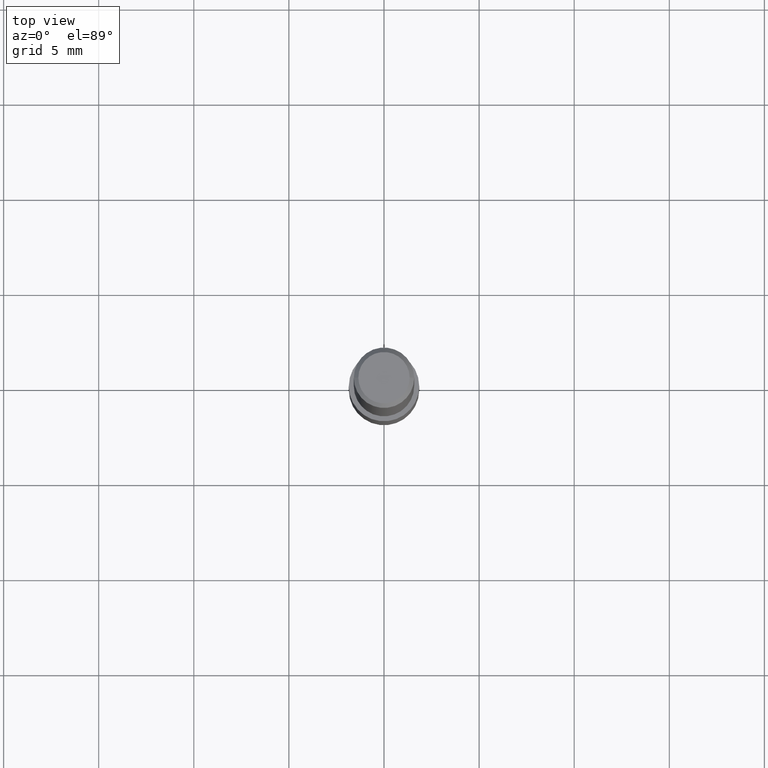
[diagram: clean part render]
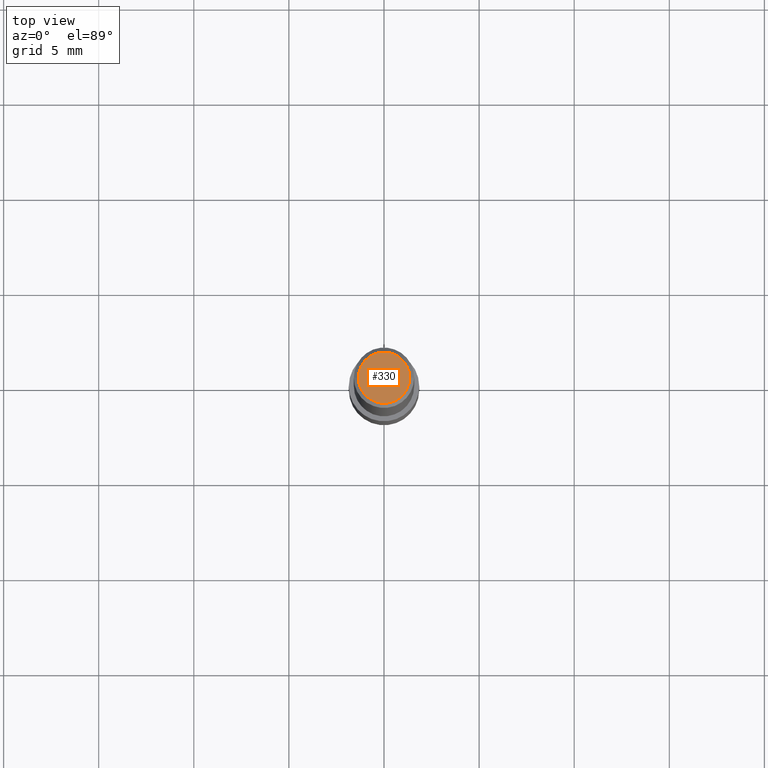
[diagram: same view with one face highlighted and labeled with its STEP entity id]
A machine part, top view. The second image highlights one B-rep face of the part: STEP entity #330.
In plain terms, the highlighted planar face has unit normal (0, -0, -1).
Its self-contained STEP definition (entity closure, byte-faithful):
#4 = DIRECTION ( 'NONE',  ( 1.000000000000000000, -6.982962677686266711E-15, 4.876176628004948512E-29 ) ) ;
#5 = ORIENTED_EDGE ( 'NONE', *, *, #142, .T. ) ;
#19 = FACE_OUTER_BOUND ( 'NONE', #158, .T. ) ;
#20 = CIRCLE ( 'NONE', #213, 0.05312499999999999861 ) ;
#43 = DIRECTION ( 'NONE',  ( -1.000000000000000000, 6.982962677686265922E-15, -4.876176775795935793E-29 ) ) ;
#78 = CARTESIAN_POINT ( 'NONE',  ( -3.743544432386672853E-50, 5.344789307371238476E-36, 1.530808498934197599E-21 ) ) ;
#90 = VERTEX_POINT ( 'NONE', #298 ) ;
#111 = DIRECTION ( 'NONE',  ( 1.000000000000000000, -6.982962677686266711E-15, 4.876176628004948512E-29 ) ) ;
#118 = VERTEX_POINT ( 'NONE', #222 ) ;
#123 = PLANE ( 'NONE',  #239 ) ;
#134 = CARTESIAN_POINT ( 'NONE',  ( -7.487088864773345706E-50, 1.068957861474247695E-35, 3.061616997868395197E-21 ) ) ;
#142 = EDGE_CURVE ( 'NONE', #90, #118, #20, .T. ) ;
#158 = EDGE_LOOP ( 'NONE', ( #296, #5 ) ) ;
#192 = AXIS2_PLACEMENT_3D ( 'NONE', #134, #235, #4 ) ;
#213 = AXIS2_PLACEMENT_3D ( 'NONE', #218, #314, #111 ) ;
#218 = CARTESIAN_POINT ( 'NONE',  ( -7.487088864773345706E-50, 1.068957861474247695E-35, 3.061616997868395197E-21 ) ) ;
#222 = CARTESIAN_POINT ( 'NONE',  ( -0.05312499999999999861, 3.873362110279099094E-16, 3.061616995216862494E-21 ) ) ;
#235 = DIRECTION ( 'NONE',  ( -2.445468806185136597E-29, 3.491481338843145583E-15, 1.000000000000000000 ) ) ;
#239 = AXIS2_PLACEMENT_3D ( 'NONE', #78, #246, #43 ) ;
#246 = DIRECTION ( 'NONE',  ( 2.438088387897960049E-29, -3.491481338843145188E-15, -1.000000000000000000 ) ) ;
#287 = EDGE_CURVE ( 'NONE', #118, #90, #327, .T. ) ;
#296 = ORIENTED_EDGE ( 'NONE', *, *, #287, .T. ) ;
#298 = CARTESIAN_POINT ( 'NONE',  ( 0.05312499999999999861, -4.129888592719939842E-16, 3.061617000609493422E-21 ) ) ;
#314 = DIRECTION ( 'NONE',  ( -2.445468806185136597E-29, 3.491481338843145583E-15, 1.000000000000000000 ) ) ;
#327 = CIRCLE ( 'NONE', #192, 0.05312499999999999861 ) ;
#330 = ADVANCED_FACE ( 'NONE', ( #19 ), #123, .F. ) ;